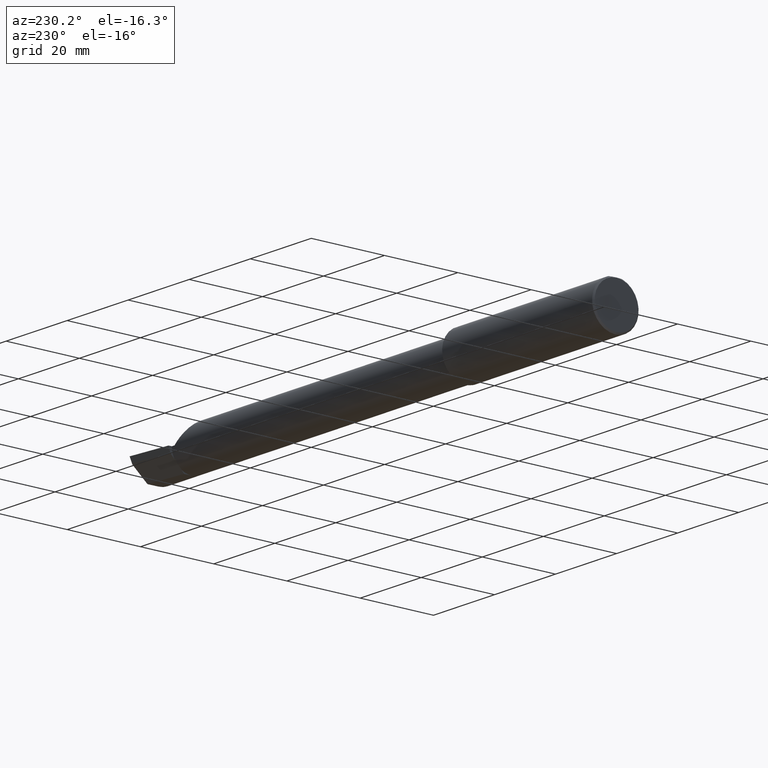
[diagram: clean part render]
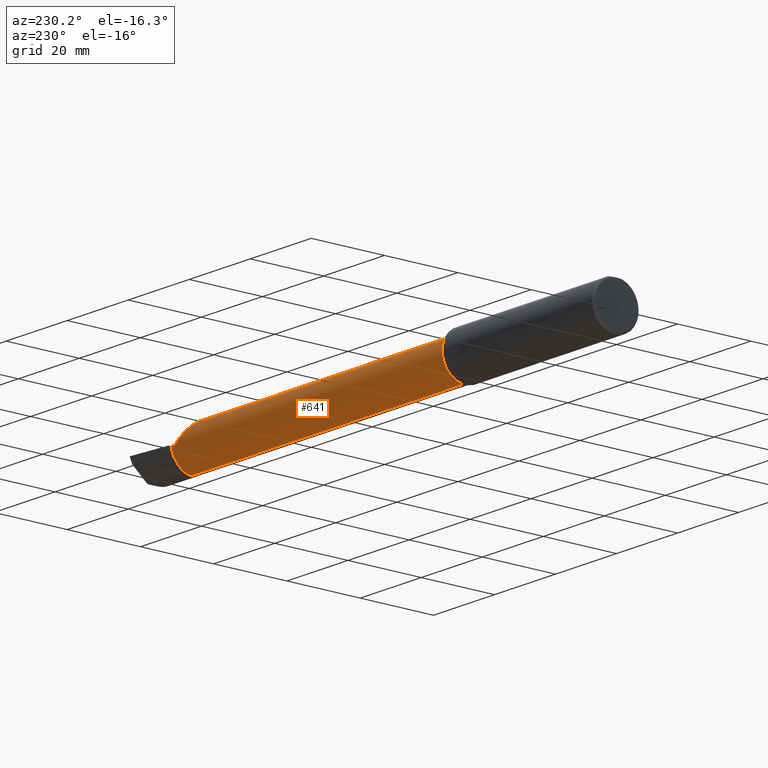
[diagram: same view with one face highlighted and labeled with its STEP entity id]
A machine part, auxiliary view. The second image highlights one B-rep face of the part: STEP entity #641.
In plain terms, the highlighted cylindrical surface (edge-blend (fillet) strip) has radius 5.414 mm, axis along (-1, -0, -0).
Its self-contained STEP definition (entity closure, byte-faithful):
#7 = CARTESIAN_POINT ( 'NONE',  ( 5.510000000000000675, 0.1601499999999997648, -1.849216666712503932E-16 ) ) ;
#10 = CARTESIAN_POINT ( 'NONE',  ( 5.544999999999999929, -0.05299999999999998462, 0.000000000000000000 ) ) ;
#20 = CARTESIAN_POINT ( 'NONE',  ( 0.000000000000000000, -0.05299999999999998462, 0.000000000000000000 ) ) ;
#24 = ORIENTED_EDGE ( 'NONE', *, *, #139, .F. ) ;
#30 = ORIENTED_EDGE ( 'NONE', *, *, #694, .F. ) ;
#38 = CARTESIAN_POINT ( 'NONE',  ( 5.540349815208491790, 0.05592018782259707693, -0.1832193089843160150 ) ) ;
#44 = EDGE_CURVE ( 'NONE', #128, #101, #795, .T. ) ;
#55 = DIRECTION ( 'NONE',  ( -1.000000000000000000, -0.000000000000000000, -0.000000000000000000 ) ) ;
#63 = CARTESIAN_POINT ( 'NONE',  ( 5.296849999999999170, -0.05299999999999998462, 0.2131499999999998951 ) ) ;
#65 = CARTESIAN_POINT ( 'NONE',  ( 5.510000000000000675, 0.1601499999999997648, -1.849216666712503932E-16 ) ) ;
#70 = CARTESIAN_POINT ( 'NONE',  ( 5.540349815208491790, 0.05592018782259707693, -0.1832193089843160150 ) ) ;
#81 =( BOUNDED_CURVE ( )  B_SPLINE_CURVE ( 3, ( #740, #607, #212, #145 ),
 .UNSPECIFIED., .F., .F. ) 
 B_SPLINE_CURVE_WITH_KNOTS ( ( 4, 4 ),
 ( 2.868174658477150363, 2.883234730632700860 ),
 .UNSPECIFIED. ) 
 CURVE ( )  GEOMETRIC_REPRESENTATION_ITEM ( )  RATIONAL_B_SPLINE_CURVE ( ( 1.000000000000000000, 0.9999810996081960335, 0.9999810996081960335, 1.000000000000000000 ) ) 
 REPRESENTATION_ITEM ( '' )  );
#88 = CARTESIAN_POINT ( 'NONE',  ( 5.532795049205046389, 0.1343794326159111485, -0.1015966078791001453 ) ) ;
#101 = VERTEX_POINT ( 'NONE', #520 ) ;
#103 = CARTESIAN_POINT ( 'NONE',  ( 5.543466858877803993, 0.05663251955087983402, -0.1827944341085906699 ) ) ;
#115 = ORIENTED_EDGE ( 'NONE', *, *, #528, .T. ) ;
#121 = ORIENTED_EDGE ( 'NONE', *, *, #815, .T. ) ;
#122 = CARTESIAN_POINT ( 'NONE',  ( 5.544999999999999929, -0.05299999999999998462, 0.000000000000000000 ) ) ;
#128 = VERTEX_POINT ( 'NONE', #415 ) ;
#136 = EDGE_CURVE ( 'NONE', #534, #294, #548, .T. ) ;
#138 = EDGE_CURVE ( 'NONE', #430, #101, #745, .T. ) ;
#139 = EDGE_CURVE ( 'NONE', #661, #294, #81, .T. ) ;
#145 = CARTESIAN_POINT ( 'NONE',  ( 5.544999999999999929, 0.1328281892403431474, -0.1044069278527783029 ) ) ;
#146 = VECTOR ( 'NONE', #461, 39.37007874015748143 ) ;
#168 = CARTESIAN_POINT ( 'NONE',  ( 5.537149611766867707, 0.08915557130098419880, -0.1634615431086031412 ) ) ;
#189 = AXIS2_PLACEMENT_3D ( 'NONE', #20, #290, #755 ) ;
#212 = CARTESIAN_POINT ( 'NONE',  ( 5.541044210672205317, 0.1333523194825144975, -0.1034740570574017304 ) ) ;
#232 = EDGE_LOOP ( 'NONE', ( #522, #762, #658, #30, #121, #115, #859, #24, #841, #300 ) ) ;
#233 =( BOUNDED_CURVE ( )  B_SPLINE_CURVE ( 3, ( #63, #348, #346, #7 ),
 .UNSPECIFIED., .F., .T. ) 
 B_SPLINE_CURVE_WITH_KNOTS ( ( 4, 4 ),
 ( 0.000000000000000000, 1.570796326794897002 ),
 .UNSPECIFIED. ) 
 CURVE ( )  GEOMETRIC_REPRESENTATION_ITEM ( )  RATIONAL_B_SPLINE_CURVE ( ( 1.000000000000000000, 0.8047378541243649375, 0.8047378541243649375, 1.000000000000000000 ) ) 
 REPRESENTATION_ITEM ( '' )  );
#241 = DIRECTION ( 'NONE',  ( 0.000000000000000000, 0.000000000000000000, 1.000000000000000000 ) ) ;
#246 = CARTESIAN_POINT ( 'NONE',  ( 5.544999999999999929, 0.05698775240724696101, -0.1825804393148461879 ) ) ;
#251 = VERTEX_POINT ( 'NONE', #70 ) ;
#264 = CARTESIAN_POINT ( 'NONE',  ( 5.544999999999999929, 0.1601500000000002366, 4.235963549344515614E-16 ) ) ;
#271 = AXIS2_PLACEMENT_3D ( 'NONE', #10, #686, #678 ) ;
#277 = CARTESIAN_POINT ( 'NONE',  ( 1.975000000000000755, -0.05299999999999998462, 0.000000000000000000 ) ) ;
#290 = DIRECTION ( 'NONE',  ( -1.000000000000000000, -0.000000000000000000, -0.000000000000000000 ) ) ;
#294 = VERTEX_POINT ( 'NONE', #823 ) ;
#300 = ORIENTED_EDGE ( 'NONE', *, *, #454, .F. ) ;
#309 = VERTEX_POINT ( 'NONE', #839 ) ;
#328 = CARTESIAN_POINT ( 'NONE',  ( 1.975000000000000755, -0.05299999999999998462, 0.2131499999999995620 ) ) ;
#331 = EDGE_CURVE ( 'NONE', #661, #251, #741, .T. ) ;
#332 = CARTESIAN_POINT ( 'NONE',  ( 4.678149108241350816E-32, 0.1601499999999999035, 4.235963549344508711E-16 ) ) ;
#334 = DIRECTION ( 'NONE',  ( 0.000000000000000000, 0.000000000000000000, 1.000000000000000000 ) ) ;
#340 = LINE ( 'NONE', #332, #481 ) ;
#346 = CARTESIAN_POINT ( 'NONE',  ( 5.385139620819824557, 0.1601499999999999313, 0.1248603791801746882 ) ) ;
#348 = CARTESIAN_POINT ( 'NONE',  ( 5.296849999999999170, 0.07186037918017477988, 0.2131499999999999229 ) ) ;
#355 = CYLINDRICAL_SURFACE ( 'NONE', #189, 0.2131499999999998951 ) ;
#366 = CARTESIAN_POINT ( 'NONE',  ( 5.540349815208491790, 0.05592018782259707693, -0.1832193089843160150 ) ) ;
#415 = CARTESIAN_POINT ( 'NONE',  ( 5.544999999999999929, -0.05299999999999998462, -0.2131499999999999229 ) ) ;
#430 = VERTEX_POINT ( 'NONE', #328 ) ;
#452 = CARTESIAN_POINT ( 'NONE',  ( 5.532795049205046389, 0.1343794326159111485, -0.1015966078791001453 ) ) ;
#454 = EDGE_CURVE ( 'NONE', #309, #251, #685, .T. ) ;
#461 = DIRECTION ( 'NONE',  ( -1.000000000000000000, -0.000000000000000000, -0.000000000000000000 ) ) ;
#464 = CARTESIAN_POINT ( 'NONE',  ( 0.000000000000000000, -0.05299999999999996381, -0.2131499999999998951 ) ) ;
#470 = VECTOR ( 'NONE', #55, 39.37007874015748143 ) ;
#478 = EDGE_CURVE ( 'NONE', #309, #128, #760, .T. ) ;
#481 = VECTOR ( 'NONE', #810, 39.37007874015748143 ) ;
#490 = FACE_OUTER_BOUND ( 'NONE', #232, .T. ) ;
#520 = CARTESIAN_POINT ( 'NONE',  ( 1.975000000000000755, -0.05299999999999996381, -0.2131499999999995620 ) ) ;
#522 = ORIENTED_EDGE ( 'NONE', *, *, #478, .T. ) ;
#528 = EDGE_CURVE ( 'NONE', #567, #534, #340, .T. ) ;
#534 = VERTEX_POINT ( 'NONE', #264 ) ;
#548 = CIRCLE ( 'NONE', #271, 0.2131500000000002282 ) ;
#567 = VERTEX_POINT ( 'NONE', #65 ) ;
#607 = CARTESIAN_POINT ( 'NONE',  ( 5.536975816846312348, 0.1338694103809241476, -0.1025372660271246239 ) ) ;
#641 = ADVANCED_FACE ( 'NONE', ( #490 ), #355, .T. ) ;
#642 = LINE ( 'NONE', #651, #470 ) ;
#644 = DIRECTION ( 'NONE',  ( -1.000000000000000000, -0.000000000000000000, -0.000000000000000000 ) ) ;
#650 = VERTEX_POINT ( 'NONE', #656 ) ;
#651 = CARTESIAN_POINT ( 'NONE',  ( 0.000000000000000000, -0.05299999999999998462, 0.2131499999999998951 ) ) ;
#656 = CARTESIAN_POINT ( 'NONE',  ( 5.296849999999999170, -0.05299999999999998462, 0.2131499999999998951 ) ) ;
#658 = ORIENTED_EDGE ( 'NONE', *, *, #138, .F. ) ;
#661 = VERTEX_POINT ( 'NONE', #452 ) ;
#678 = DIRECTION ( 'NONE',  ( 0.000000000000000000, 0.000000000000000000, 1.000000000000000000 ) ) ;
#684 = DIRECTION ( 'NONE',  ( -1.000000000000000000, -0.000000000000000000, -0.000000000000000000 ) ) ;
#685 =( BOUNDED_CURVE ( )  B_SPLINE_CURVE ( 3, ( #246, #103, #723, #38 ),
 .UNSPECIFIED., .F., .F. ) 
 B_SPLINE_CURVE_WITH_KNOTS ( ( 4, 4 ),
 ( 3.399950576546887593, 3.405787439796299054 ),
 .UNSPECIFIED. ) 
 CURVE ( )  GEOMETRIC_REPRESENTATION_ITEM ( )  RATIONAL_B_SPLINE_CURVE ( ( 1.000000000000000000, 0.9999971609209656886, 0.9999971609209656886, 1.000000000000000000 ) ) 
 REPRESENTATION_ITEM ( '' )  );
#686 = DIRECTION ( 'NONE',  ( -1.000000000000000000, -0.000000000000000000, -0.000000000000000000 ) ) ;
#694 = EDGE_CURVE ( 'NONE', #650, #430, #642, .T. ) ;
#705 = CARTESIAN_POINT ( 'NONE',  ( 5.534569588231481596, 0.1159501401920729202, -0.1355866241796506999 ) ) ;
#723 = CARTESIAN_POINT ( 'NONE',  ( 5.541916792879874265, 0.05627666367902695727, -0.1830073912696828509 ) ) ;
#740 = CARTESIAN_POINT ( 'NONE',  ( 5.532795049205046389, 0.1343794326159111485, -0.1015966078791001453 ) ) ;
#741 =( BOUNDED_CURVE ( )  B_SPLINE_CURVE ( 3, ( #88, #705, #168, #366 ),
 .UNSPECIFIED., .F., .F. ) 
 B_SPLINE_CURVE_WITH_KNOTS ( ( 4, 4 ),
 ( 0.4968328636559403155, 1.034445644975090284 ),
 .UNSPECIFIED. ) 
 CURVE ( )  GEOMETRIC_REPRESENTATION_ITEM ( )  RATIONAL_B_SPLINE_CURVE ( ( 1.000000000000000000, 0.9760590552538819242, 0.9760590552538819242, 1.000000000000000000 ) ) 
 REPRESENTATION_ITEM ( '' )  );
#745 = CIRCLE ( 'NONE', #758, 0.2131499999999995620 ) ;
#755 = DIRECTION ( 'NONE',  ( 0.000000000000000000, 0.000000000000000000, 1.000000000000000000 ) ) ;
#758 = AXIS2_PLACEMENT_3D ( 'NONE', #277, #684, #334 ) ;
#760 = CIRCLE ( 'NONE', #816, 0.2131500000000002282 ) ;
#762 = ORIENTED_EDGE ( 'NONE', *, *, #44, .T. ) ;
#795 = LINE ( 'NONE', #464, #146 ) ;
#810 = DIRECTION ( 'NONE',  ( 1.000000000000000000, 0.000000000000000000, 0.000000000000000000 ) ) ;
#815 = EDGE_CURVE ( 'NONE', #650, #567, #233, .T. ) ;
#816 = AXIS2_PLACEMENT_3D ( 'NONE', #122, #644, #241 ) ;
#823 = CARTESIAN_POINT ( 'NONE',  ( 5.544999999999999929, 0.1328281892403431474, -0.1044069278527783029 ) ) ;
#839 = CARTESIAN_POINT ( 'NONE',  ( 5.544999999999999929, 0.05698775240724696101, -0.1825804393148461879 ) ) ;
#841 = ORIENTED_EDGE ( 'NONE', *, *, #331, .T. ) ;
#859 = ORIENTED_EDGE ( 'NONE', *, *, #136, .T. ) ;